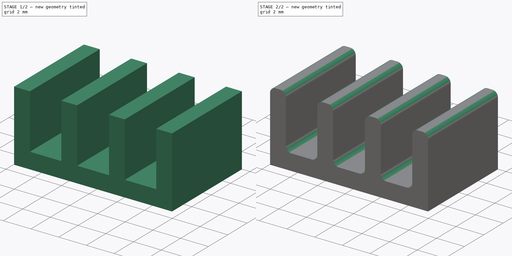
[diagram: build sequence overview — one tinted view per stage of 2, left to right]
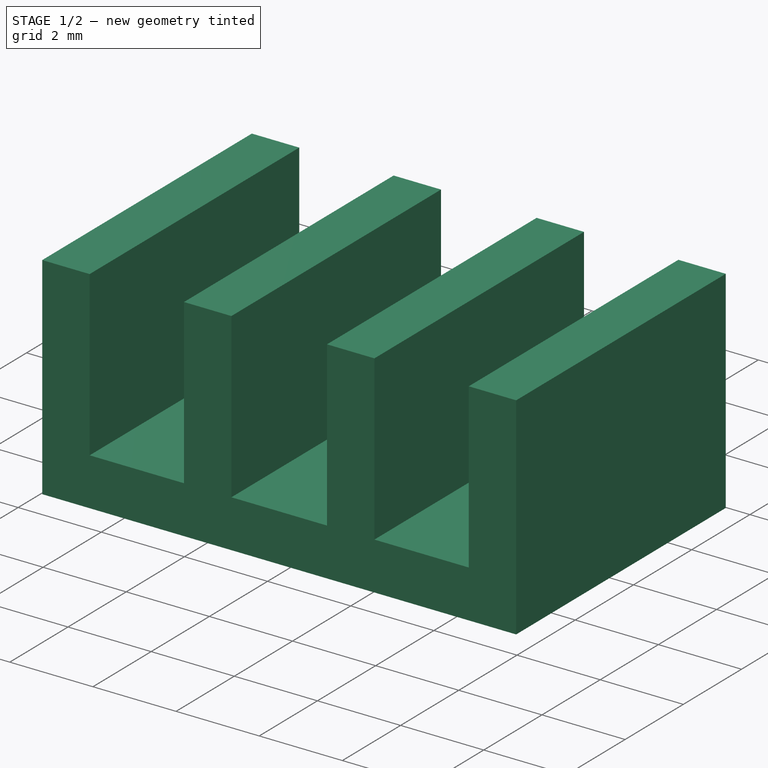
[diagram: stage 1 of 2 — iso view after this stage's code; geometry added in this stage tinted green]
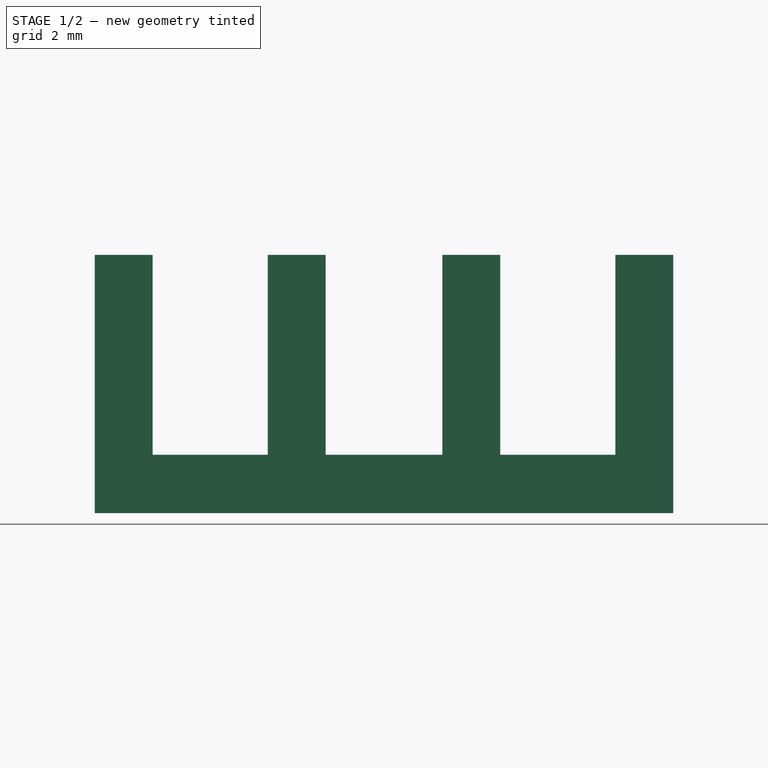
[diagram: stage 1 of 2 — front view after this stage's code; geometry added in this stage tinted green]
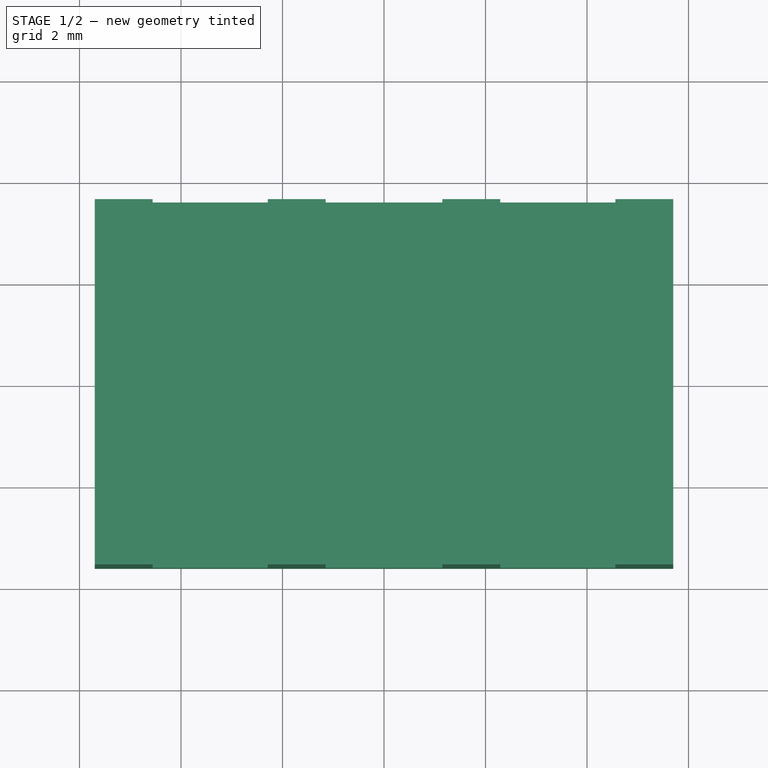
[diagram: stage 1 of 2 — top view after this stage's code; geometry added in this stage tinted green]
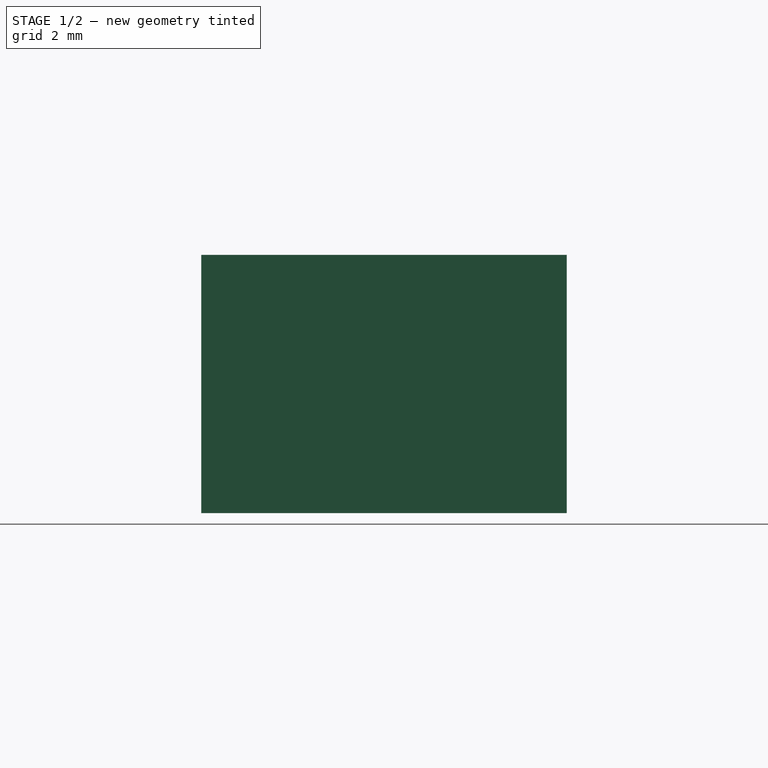
[diagram: stage 1 of 2 — right view after this stage's code; geometry added in this stage tinted green]
FCSTD DOCUMENT  (FreeCAD 0.20R29177 (Git))
Label: dissip001
License: All rights reserved
LicenseURL: http://en.wikipedia.org/wiki/All_rights_reserved
objects: Sketcher::SketchObject×1, Spreadsheet::Sheet×1, PartDesign::Pad×1, PartDesign::Fillet×1, PartDesign::Body×1, App::Part×1
note: 6 computed .brp shape members not serialized (recipe doc carries the construction recipe); baked Part::Feature solids carry a one-line shape summary decoded from their .brp

FEATURE [Sketcher::SketchObject] Sketch
  FullyConstrained = true
  MapMode = 5
  Placement = pos=(0,0,0) rot=(1,0,0;1.5708rad)
  Support = -> [XZ_Plane001]
  sketch-geometry (16):
    g0: LineSegment StartX=-5.7 StartY=0 StartZ=0 EndX=5.7 EndY=0 EndZ=0
    g1: LineSegment StartX=5.7 StartY=0 StartZ=0 EndX=5.7 EndY=5.09 EndZ=0
    g2: LineSegment StartX=5.7 StartY=5.09 StartZ=0 EndX=4.56 EndY=5.09 EndZ=0
    g3: LineSegment StartX=4.56 StartY=5.09 StartZ=0 EndX=4.56 EndY=1.15 EndZ=0
    g4: LineSegment StartX=4.56 StartY=1.15 StartZ=0 EndX=2.29 EndY=1.15 EndZ=0
    g5: LineSegment StartX=2.29 StartY=1.15 StartZ=0 EndX=2.29 EndY=5.09 EndZ=0
    g6: LineSegment StartX=2.29 StartY=5.09 StartZ=0 EndX=1.15 EndY=5.09 EndZ=0
    g7: LineSegment StartX=1.15 StartY=5.09 StartZ=0 EndX=1.15 EndY=1.15 EndZ=0
    g8: LineSegment StartX=1.15 StartY=1.15 StartZ=0 EndX=-1.15 EndY=1.15 EndZ=0
    g9: LineSegment StartX=-1.15 StartY=1.15 StartZ=0 EndX=-1.15 EndY=5.09 EndZ=0
    g10: LineSegment StartX=-1.15 StartY=5.09 StartZ=0 EndX=-2.29 EndY=5.09 EndZ=0
    g11: LineSegment StartX=-2.29 StartY=5.09 StartZ=0 EndX=-2.29 EndY=1.15 EndZ=0
    g12: LineSegment StartX=-2.29 StartY=1.15 StartZ=0 EndX=-4.56 EndY=1.15 EndZ=0
    g13: LineSegment StartX=-4.56 StartY=1.15 StartZ=0 EndX=-4.56 EndY=5.09 EndZ=0
    g14: LineSegment StartX=-4.56 StartY=5.09 StartZ=0 EndX=-5.7 EndY=5.09 EndZ=0
    g15: LineSegment StartX=-5.7 StartY=5.09 StartZ=0 EndX=-5.7 EndY=0 EndZ=0
  constraints (46):
    c: PointOnObject(g0,g-1)
    c: Coincident(g0,g1)
    c: Vertical(g1)
    c: Coincident(g1,g2)
    c: Horizontal(g2)
    c: Coincident(g2,g3)
    c: Vertical(g3)
    c: Coincident(g3,g4)
    c: Coincident(g4,g5)
    c: Coincident(g5,g6)
    c: Coincident(g6,g7)
    c: Coincident(g7,g8)
    c: Coincident(g8,g9)
    c: Coincident(g9,g10)
    c: Horizontal(g10)
    c: Coincident(g10,g11)
    c: Coincident(g11,g12)
    c: Coincident(g12,g13)
    c: Coincident(g13,g14)
    c: Coincident(g14,g15)
    c: Coincident(g0,g15)
    c: Vertical(g15)
    c: Symmetric(g0,g0,g-2)
    c: Horizontal(g6)
    c: Horizontal(g4)
    c: Symmetric(g8,g7,g-2)
    c: DistanceX(g0,g0) = 11.4
    c: Vertical(g13)
    c: Horizontal(g14)
    c: Horizontal(g12)
    c: Horizontal(g13,g10)
    c: Horizontal(g9,g6)
    c: Vertical(g9)
    c: Vertical(g7)
    c: Vertical(g5)
    c: Horizontal(g5,g2)
    c: Horizontal(g11,g8)
    c: Horizontal(g7,g4)
    c: Vertical(g11)
    c: DistanceX(g2,g2) = 1.14
    c: Equal(g2,g6)
    c: Equal(g6,g10)
    c: Equal(g10,g14)
    c: DistanceX(g4,g4) = 2.27
    c: DistanceY(g0,g1) = 5.09
    c: DistanceY(g0,g12) = 1.15
FEATURE [Spreadsheet::Sheet] Spreadsheet
  cells = B2=Long; A3==hiddenref(Part.config.String); B3(Long)==.B7; A4=L1; B4=16; A5=L2; B5=11.13; A6=L3; B6=8; A7=L4; B7=7.2; A8=L5; B8=3.87
  expr: .cells.Bind.B3.ZZ3 = tuple(.cells; <<B>> + str(hiddenref(Part.config) + 4); <<ZZ>> + str(hiddenref(Part.config) + 4))
FEATURE [PartDesign::Pad] Pad
  Direction = (0,-1,-2e-16)
  Length = 7.2
  Length2 = 10
  Midplane = true
  Placement = pos=(0,0,0) rot=(1,0,0;1.5708rad)
  Profile = -> Sketch
  ReferenceAxis = -> Sketch [N_Axis]
  Type = 0
  expr: Length = Spreadsheet.Long
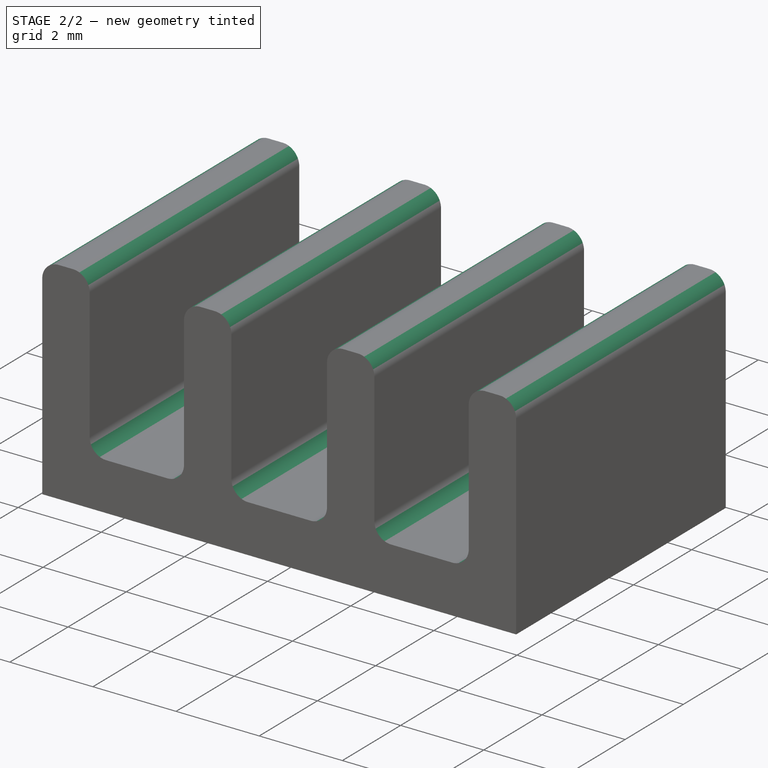
[diagram: stage 2 of 2 — iso view after this stage's code; geometry added in this stage tinted green]
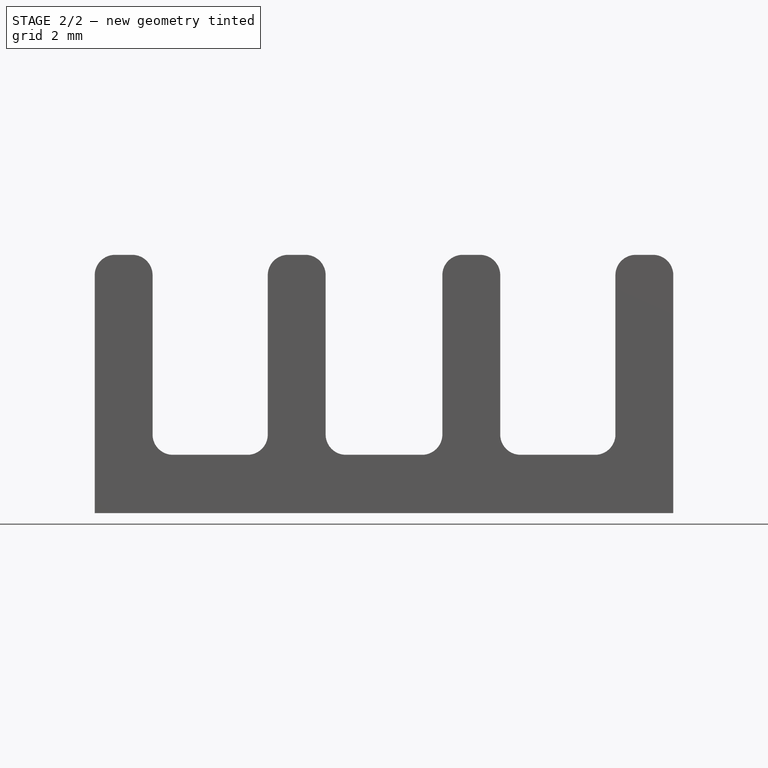
[diagram: stage 2 of 2 — front view after this stage's code; geometry added in this stage tinted green]
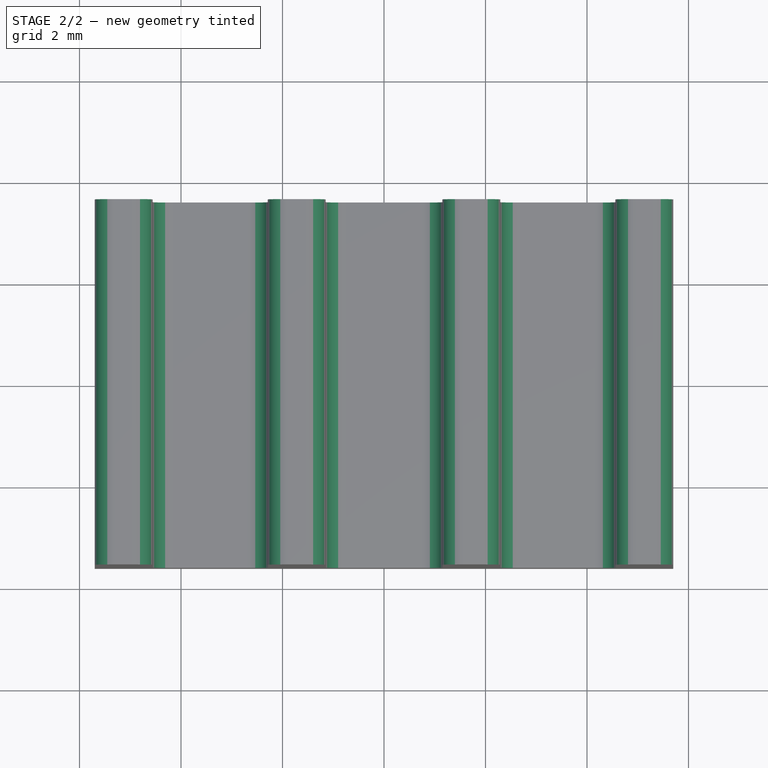
[diagram: stage 2 of 2 — top view after this stage's code; geometry added in this stage tinted green]
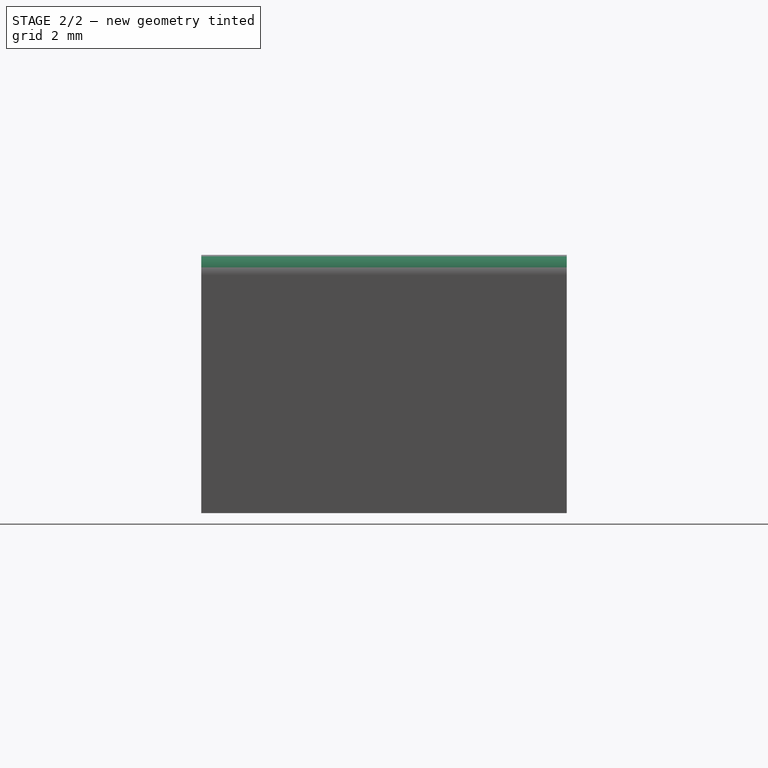
[diagram: stage 2 of 2 — right view after this stage's code; geometry added in this stage tinted green]
FEATURE [PartDesign::Fillet] Fillet
  Base = -> Pad [Edge44,Edge41,Edge32,Edge29,Edge20,Edge17,Edge8,Edge5,Edge38,Edge26,Edge14,Edge35,Edge23,Edge11]
  BaseFeature = -> Pad
  Placement = pos=(0,0,0) rot=(1,0,0;1.5708rad)
  Radius = 0.4
  SupportTransform = false
  UseAllEdges = false
FEATURE [PartDesign::Body] Body  label="dissipBdy"
  Group = -> [Sketch,Pad,Fillet]
  Origin = -> Origin001
  Tip = -> Fillet
FEATURE [App::Part] Part  label="dissipPrt"
  Group = -> [Body]
  Origin = -> Origin
  config = 3
  expr: .config.Enum = Spreadsheet.cells[<<A4:|>>]
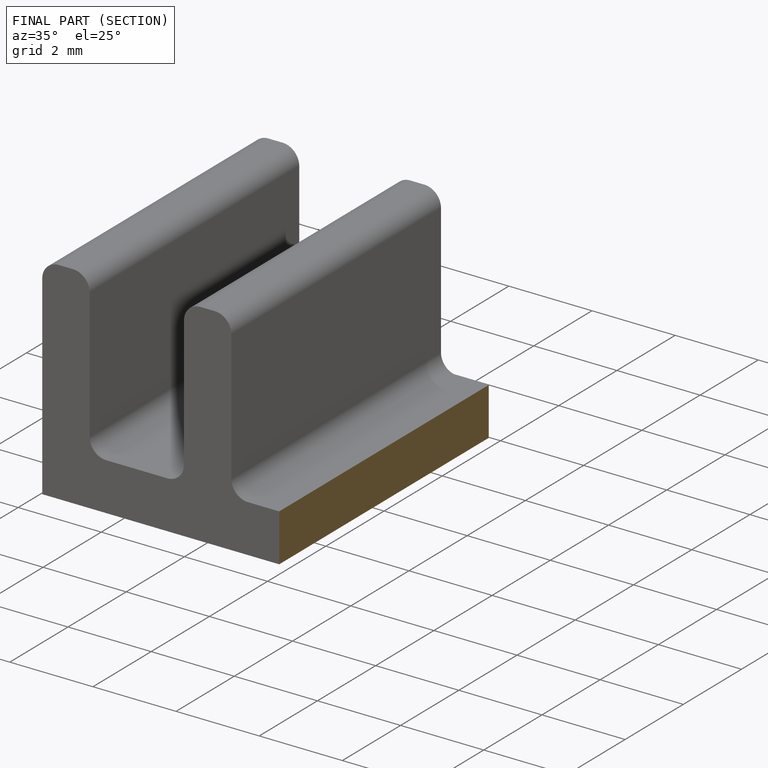
[diagram: finished part — half-section view (interior)]
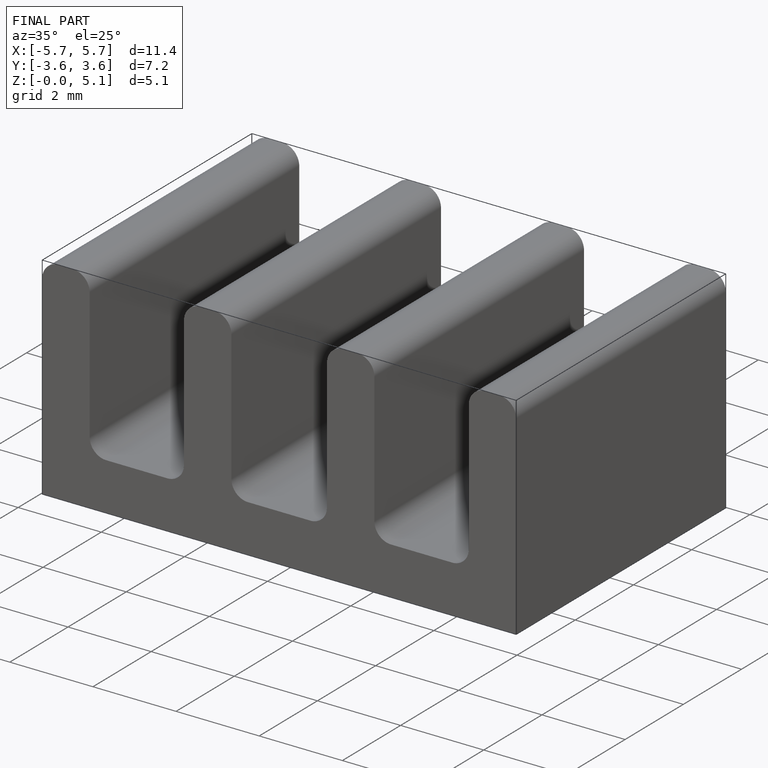
[diagram: finished part — iso view with bounding-box wireframe]
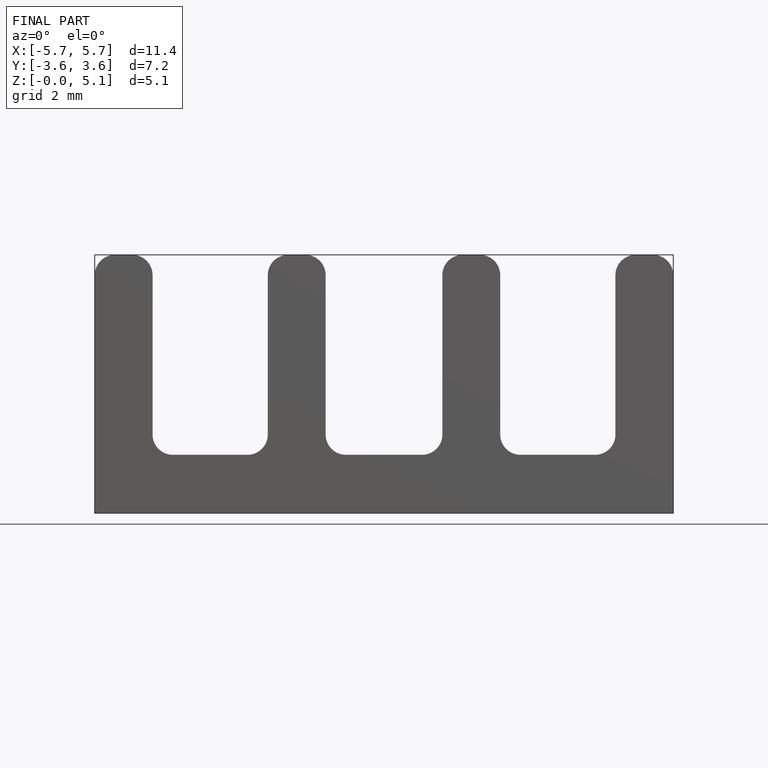
[diagram: finished part — front view with bounding-box wireframe]
